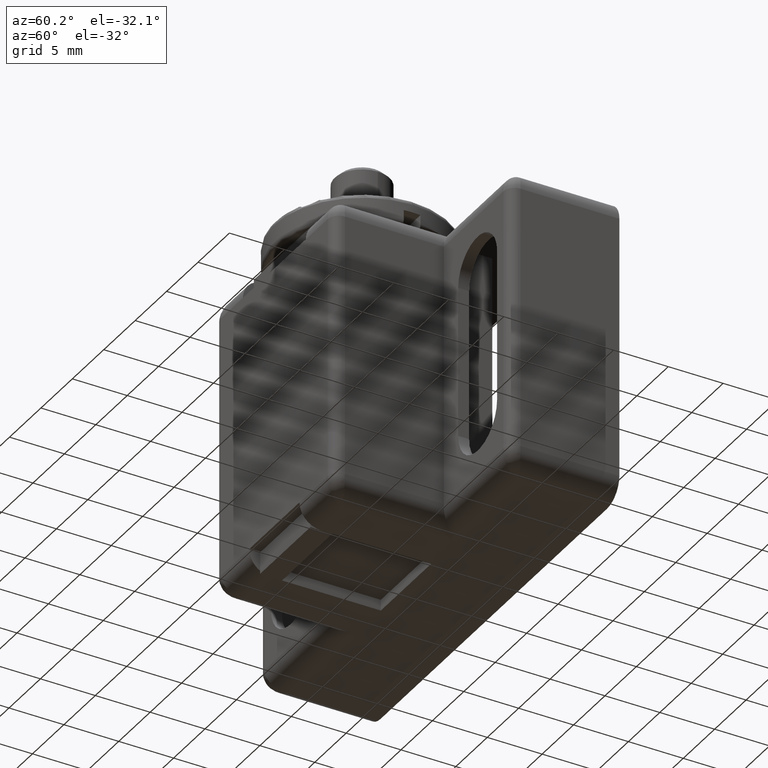
[diagram: clean part render]
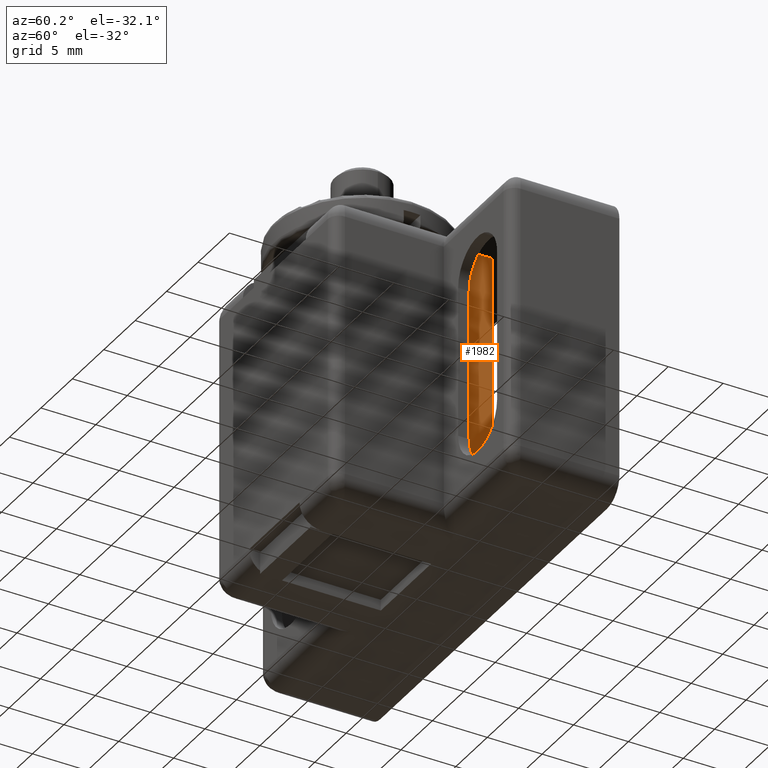
[diagram: same view with one face highlighted and labeled with its STEP entity id]
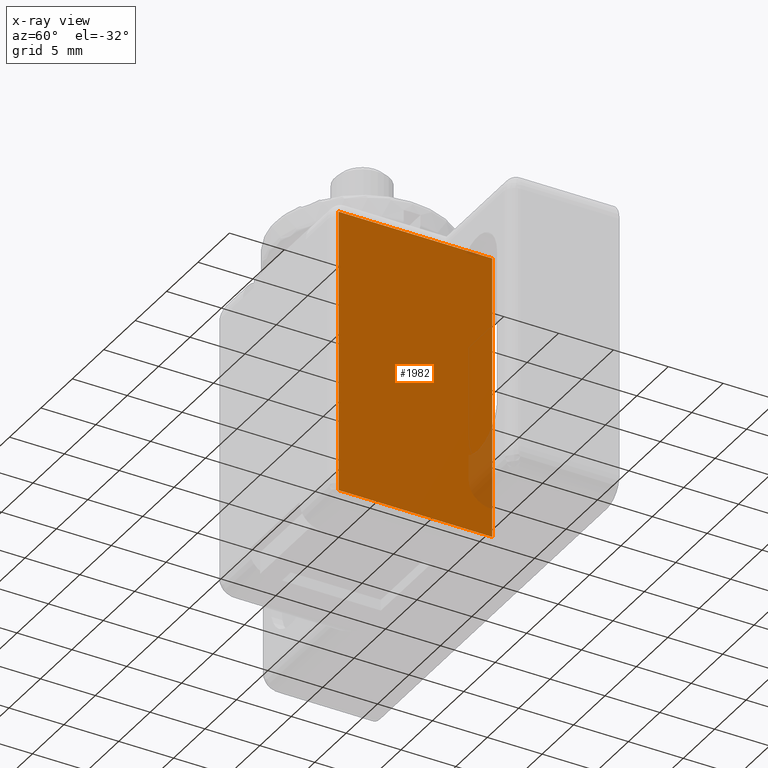
[diagram: x-ray of the same camera — body ghosted, the highlighted face saturated]
A machine part, auxiliary view. The second image highlights one B-rep face of the part: STEP entity #1982.
The next image is the same camera in x-ray: the body ghosted, the highlighted face saturated — about 3% of this face is hidden behind the body in this view.
In plain terms, the highlighted planar face has unit normal (1, -0, -0).
Its self-contained STEP definition (entity closure, byte-faithful):
#270=FACE_OUTER_BOUND('',#397,.T.);
#397=EDGE_LOOP('',(#1779,#1780,#1781,#1782));
#581=LINE('',#4306,#777);
#612=LINE('',#4369,#808);
#613=LINE('',#4372,#809);
#614=LINE('',#4373,#810);
#777=VECTOR('',#2637,14.);
#808=VECTOR('',#2690,26.);
#809=VECTOR('',#2693,14.);
#810=VECTOR('',#2694,26.);
#958=VERTEX_POINT('',#4303);
#959=VERTEX_POINT('',#4305);
#980=VERTEX_POINT('',#4367);
#981=VERTEX_POINT('',#4371);
#1221=EDGE_CURVE('',#958,#959,#581,.T.);
#1252=EDGE_CURVE('',#980,#959,#612,.T.);
#1253=EDGE_CURVE('',#981,#980,#613,.T.);
#1254=EDGE_CURVE('',#981,#958,#614,.T.);
#1779=ORIENTED_EDGE('',*,*,#1253,.T.);
#1780=ORIENTED_EDGE('',*,*,#1252,.T.);
#1781=ORIENTED_EDGE('',*,*,#1221,.F.);
#1782=ORIENTED_EDGE('',*,*,#1254,.F.);
#1866=PLANE('',#2158);
#1982=ADVANCED_FACE('',(#270),#1866,.T.);
#2158=AXIS2_PLACEMENT_3D('',#4370,#2691,#2692);
#2637=DIRECTION('',(-1.58603289232165E-016,1.,0.));
#2690=DIRECTION('',(0.,0.,1.));
#2691=DIRECTION('center_axis',(1.,1.58603289232165E-016,0.));
#2692=DIRECTION('ref_axis',(0.,1.,0.));
#2693=DIRECTION('',(-1.58603289232165E-016,1.,0.));
#2694=DIRECTION('',(0.,0.,1.));
#4303=CARTESIAN_POINT('',(17.,0.,26.));
#4305=CARTESIAN_POINT('',(17.,14.,26.));
#4306=CARTESIAN_POINT('',(17.,0.,26.));
#4367=CARTESIAN_POINT('',(17.,14.,0.));
#4369=CARTESIAN_POINT('',(17.,14.,0.));
#4370=CARTESIAN_POINT('Origin',(17.,0.,0.));
#4371=CARTESIAN_POINT('',(17.,0.,0.));
#4372=CARTESIAN_POINT('',(17.,0.,0.));
#4373=CARTESIAN_POINT('',(17.,0.,0.));